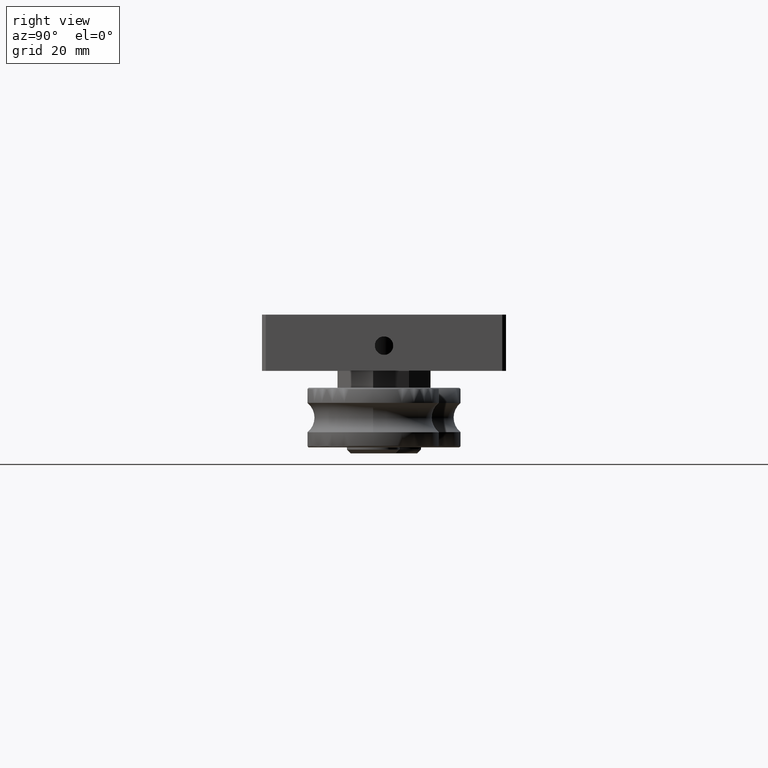
[diagram: clean part render]
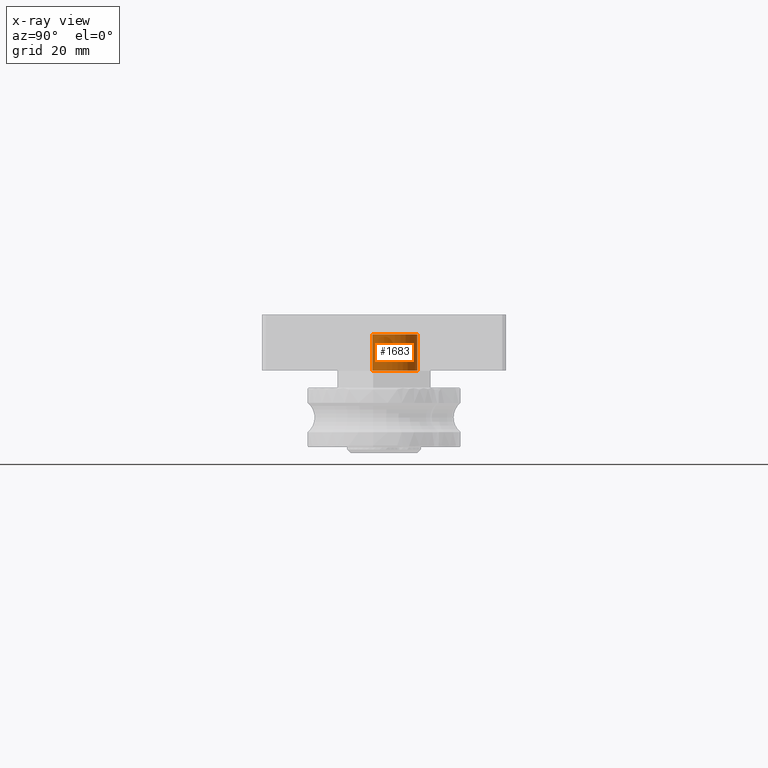
[diagram: x-ray — body ghosted, one internal face saturated and labeled with its STEP entity id]
A machine part, right view, then the same camera in x-ray: the body is ghosted and one INTERNAL B-rep face — a face not visible from any outside direction — is saturated and labeled: STEP entity #1683.
In plain terms, the highlighted cylindrical surface (bore or boss wall) has radius 6 mm, axis along (-0, 0, 1).
Its self-contained STEP definition (entity closure, byte-faithful):
#153=CYLINDRICAL_SURFACE('',#2006,5.9999999999996);
#246=CIRCLE('',#1978,5.9999999999996);
#262=CIRCLE('',#1998,5.9999999999996);
#263=CIRCLE('',#1999,5.9999999999996);
#364=FACE_OUTER_BOUND('',#492,.T.);
#492=EDGE_LOOP('',(#1402,#1403,#1404,#1405,#1406));
#606=LINE('',#3296,#714);
#714=VECTOR('',#2419,5.9999999999996);
#833=VERTEX_POINT('',#2920);
#849=VERTEX_POINT('',#3278);
#850=VERTEX_POINT('',#3279);
#1009=EDGE_CURVE('',#833,#833,#246,.T.);
#1031=EDGE_CURVE('',#849,#850,#262,.T.);
#1032=EDGE_CURVE('',#850,#849,#263,.T.);
#1040=EDGE_CURVE('',#849,#833,#606,.T.);
#1402=ORIENTED_EDGE('',*,*,#1031,.T.);
#1403=ORIENTED_EDGE('',*,*,#1032,.T.);
#1404=ORIENTED_EDGE('',*,*,#1040,.T.);
#1405=ORIENTED_EDGE('',*,*,#1009,.F.);
#1406=ORIENTED_EDGE('',*,*,#1040,.F.);
#1683=ADVANCED_FACE('',(#364),#153,.T.);
#1978=AXIS2_PLACEMENT_3D('',#2921,#2352,#2353);
#1998=AXIS2_PLACEMENT_3D('',#3280,#2394,#2395);
#1999=AXIS2_PLACEMENT_3D('',#3281,#2396,#2397);
#2006=AXIS2_PLACEMENT_3D('',#3295,#2417,#2418);
#2352=DIRECTION('center_axis',(1.61907524424477E-14,1.61907524424478E-14,
-1.));
#2353=DIRECTION('ref_axis',(0.,1.,1.61907524424478E-14));
#2394=DIRECTION('center_axis',(9.39641882820798E-15,9.25185853854009E-15,
-1.));
#2395=DIRECTION('ref_axis',(-1.,0.,-9.39641882820798E-15));
#2396=DIRECTION('center_axis',(9.39641882820798E-15,9.25185853854009E-15,
-1.));
#2397=DIRECTION('ref_axis',(-1.,0.,-9.39641882820798E-15));
#2417=DIRECTION('center_axis',(-9.25185853854155E-15,-9.25185853854157E-15,
1.));
#2418=DIRECTION('ref_axis',(0.,1.,9.25185853854157E-15));
#2419=DIRECTION('',(9.25185853854155E-15,9.25185853854157E-15,-1.));
#2920=CARTESIAN_POINT('',(0.500000000012527,-5.9999999999878,-9.9000000001205));
#2921=CARTESIAN_POINT('Origin',(0.500000000012435,1.17128529097954E-11,
-9.90000000012038));
#3278=CARTESIAN_POINT('',(0.500000000012438,-5.99999999998789,-0.200000000120339));
#3279=CARTESIAN_POINT('',(6.50000000001204,1.17159731178429E-11,-0.200000000120228));
#3280=CARTESIAN_POINT('Origin',(0.500000000012437,1.17167079059223E-11,
-0.200000000120284));
#3281=CARTESIAN_POINT('Origin',(0.500000000012437,1.17167079059223E-11,
-0.200000000120284));
#3295=CARTESIAN_POINT('Origin',(0.500000000012435,1.17128529097954E-11,
-1.20348175869367E-10));
#3296=CARTESIAN_POINT('',(0.500000000012436,-5.99999999998789,-1.20403687020598E-10));